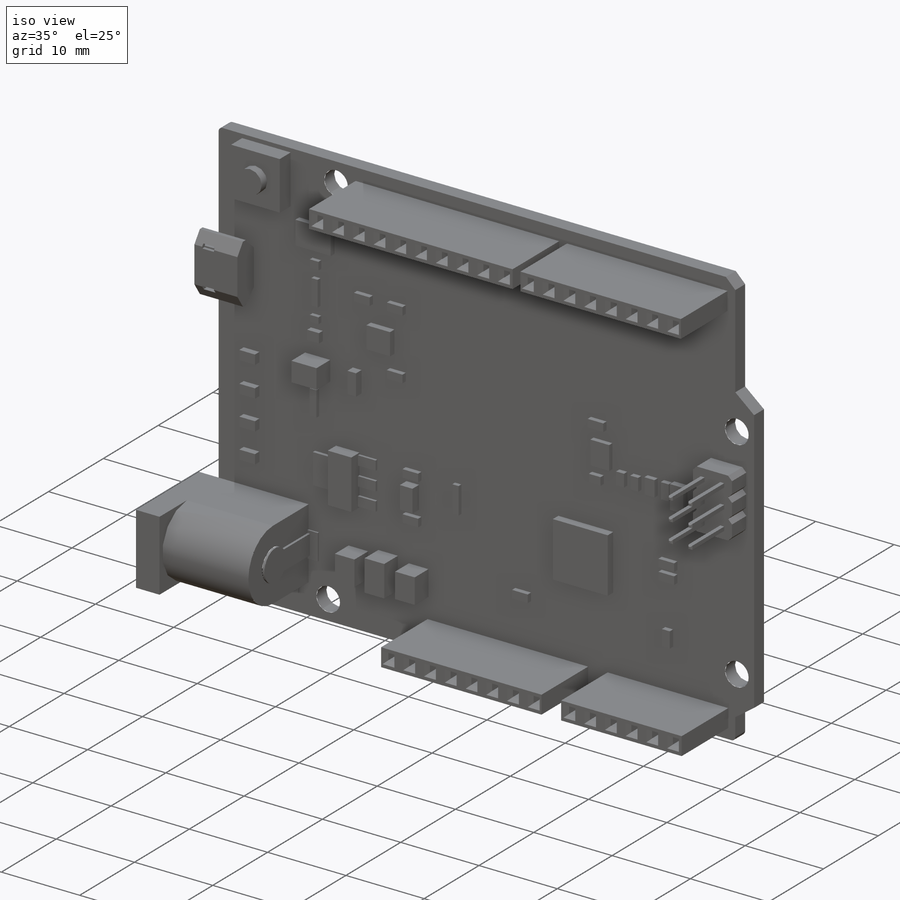
[diagram: iso view]
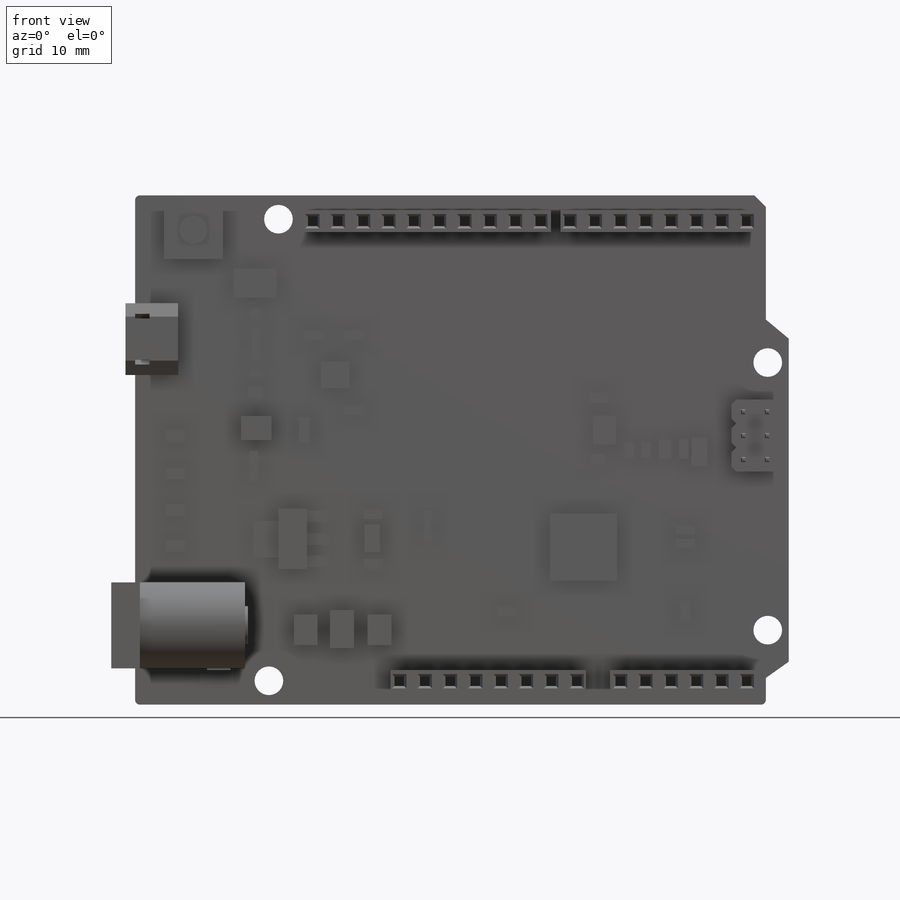
[diagram: front view]
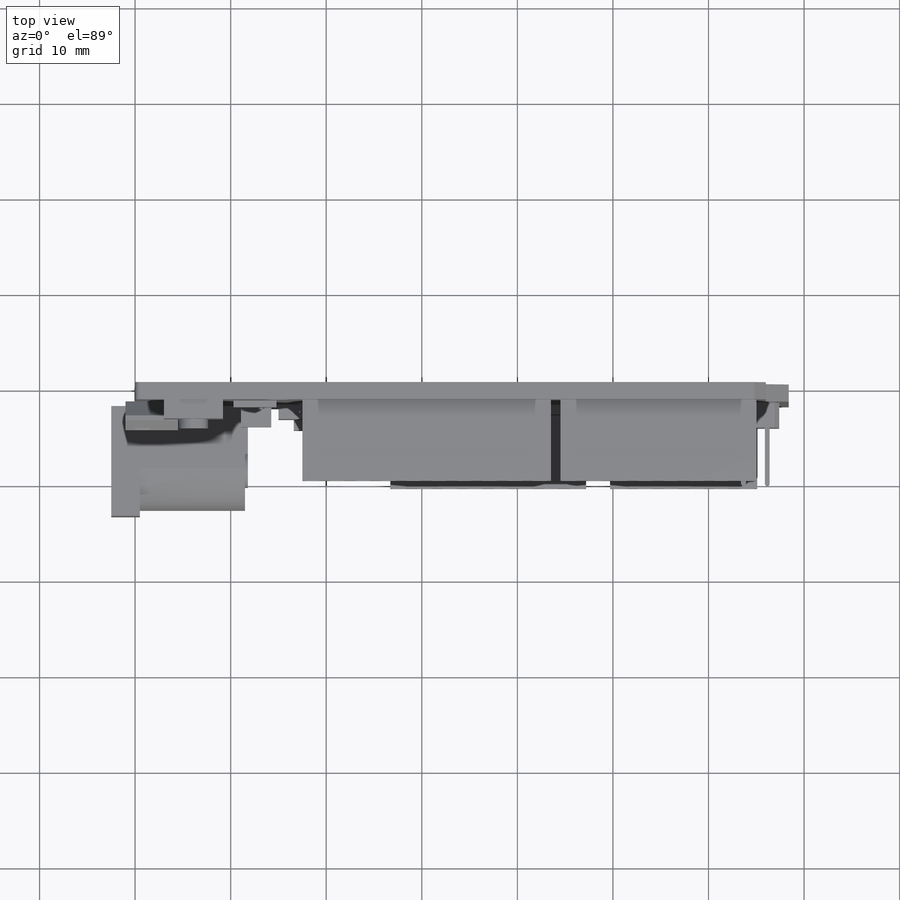
[diagram: top view]
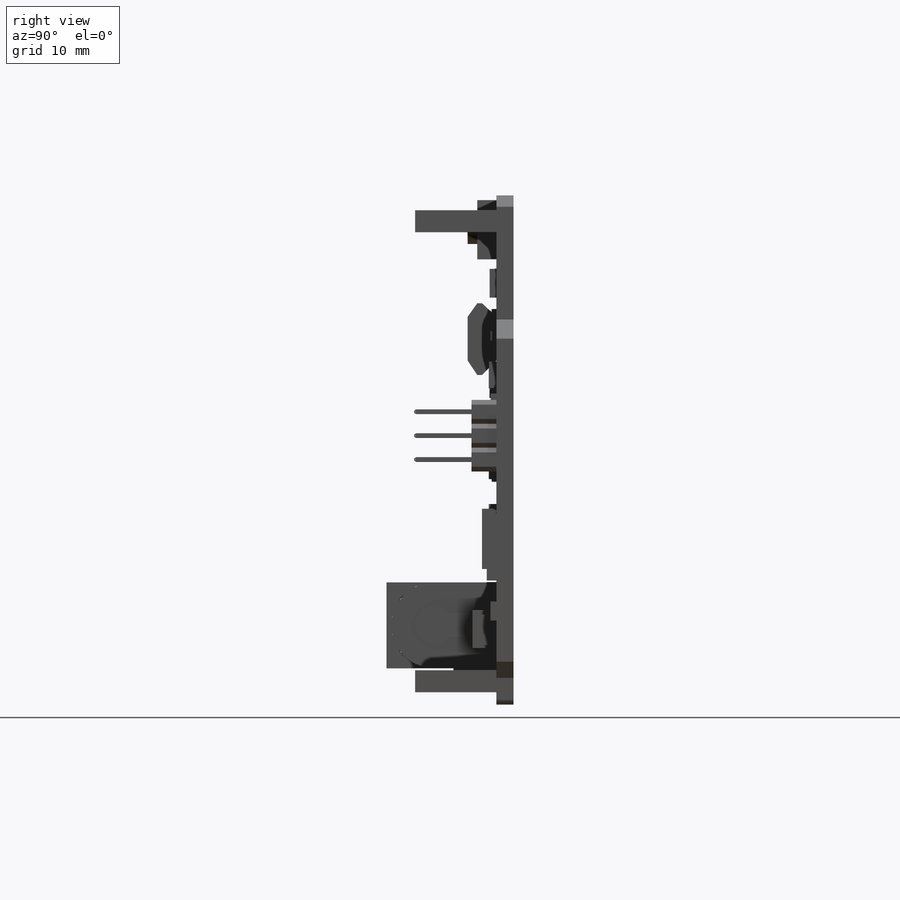
[diagram: right view]
SOLIDWORKS PART (.sldprt)
format: sldprt  version: not decoded by parser v0  size: 2,333,184 bytes
history: native  units: mm
features: sketch x47, extrude x34, cut_extrude x10, pattern_linear x5, chamfer x2, material x1, hole x1, fillet x1 (+12 scaffold rows collapsed)
feature tree (113):
  scaffold x12  (default folders/planes/origin — collapsed)
  material  "Material <not specified>"
  sketch  "Sketch1"  dims[c1.D5=0.5mm c1.D1=68.4mm c1.D2=53.3mm c1.D3=66.0mm c2.D1=68.4mm c2.D4=66.0mm c2.D5=13.0mm c2.D6=15.0mm c2.D7=48.8mm c2.D8=50.5mm c2.D9=~1.968064mm c3.D9=45.0deg c3.D10=1.2mm]
  extrude  "Boss-Extrude1"  Depth=1.8mm
  sketch  "Sketch2"  dims[D1=15.0mm D2=2.5mm D3=2.2mm D4=2.2mm D5=2.5mm D6=14.0mm D7=17.5mm D8=45.5mm]
  hole  "Ø3.0 (3) Diameter Hole2"  Diameter=3mm Depth=1.8mm
  sketch  "Sketch6"
  sketch  "Sketch7"  dims[hole-wizard template sketch: 60 standard entries collapsed; hole parameters kept: c18.Thru Hole Depth=1.8mm]
  sketch  "Sketch8"  dims[D1=2.3mm D2=2.3mm D3=2.3mm D4=2.3mm D5=15.4mm D6=1.3mm D7=1.3mm D8=20.5mm D9=2.5mm D10=3.3mm D11=1.0mm D12=1.0mm D13=20.5mm D14=26.0mm]
  extrude  "Boss-Extrude2"  Depth=8.5mm
  sketch  "Sketch10"  dims[D1=1.5mm D2=1.5mm D3=0.2mm D4=0.4mm D5=1.5mm]
  cut_extrude  "Cut-Extrude1"  Depth=8.5mm
  sketch  "Sketch11"  dims[D1=1.0mm D2=1.0mm]
  cut_extrude  "Cut-Extrude2"  Depth=8.5mm
  pattern_linear  "LPattern1"  Count1=8 Count2=1 Spacing1=2.65mm Spacing2=10mm
  sketch  "Sketch12"  dims[D1=1.5mm D2=1.5mm D3=0.4mm D4=0.3mm]
  cut_extrude  "Cut-Extrude3"  Depth=8.5mm
  sketch  "Sketch14"  dims[D1=1.0mm D2=1.0mm D3=0.25mm D4=0.25mm]
  cut_extrude  "Cut-Extrude4"  Depth=8.5mm
  pattern_linear  "LPattern2"  Count1=6 Count2=1 Spacing1=2.65mm Spacing2=10mm
  sketch  "Sketch15"  dims[D1=0.3mm D2=1.5mm D3=0.4mm D4=1.5mm]
  cut_extrude  "Cut-Extrude5"  Depth=8.5mm
  sketch  "Sketch16"  dims[D1=1.0mm]
  cut_extrude  "Cut-Extrude6"  Depth=8.5mm
  pattern_linear  "LPattern3"  Count1=10 Count2=1 Spacing1=2.65mm Spacing2=10mm
  sketch  "Sketch17"  dims[D1=0.4mm D2=1.5mm D3=1.5mm D4=0.2mm]
  cut_extrude  "Cut-Extrude7"  Depth=8.5mm
  sketch  "Sketch18"  dims[D1=1.0mm]
  cut_extrude  "Cut-Extrude8"  Depth=8.5mm
  pattern_linear  "LPattern4"  Count1=8 Count2=1 Spacing1=2.65mm Spacing2=10mm
  sketch  "Sketch19"  dims[c1.D1=5.0mm c1.D2=7.5mm c1.D3=2.5mm c1.D4=2.5mm c1.D5=~0.439722mm c2.D5=45.0deg c2.D6=5.0mm c3.D6=45.0deg c3.D7=0.5mm c3.D3=5.0mm c3.D4=1.0mm c3.D5=21.4mm c4.D6=2.5mm c4.D7=5.0mm c4.D8=0.5mm c5.D8=90.0deg c5.D9=1.5mm c6.D9=135.0deg c6.D10=1.5mm c7.D10=135.0deg c7.D11=0.5mm c8.D11=90.0deg c8.D12=0.5mm c9.D12=90.0deg c9.D13=0.5mm c10.D13=90.0deg c10.D14=2.0mm c11.D14=135.0deg c11.D15=1.5mm c12.D15=135.0deg c12.D16=0.5mm c12.D17=0.5mm c12.D18=0.5mm c12.D19=0.5mm]
  extrude  "Boss-Extrude3"  Depth=2.6mm
  chamfer  "Chamfer1"  Distance=0.5mm Angle=45deg
  sketch  "Sketch20"  dims[D1=0.5mm D2=0.5mm D3=0.5mm D4=0.5mm D5=2.0mm D6=1.0mm D7=1.0mm D8=1.0mm D9=1.0mm D10=1.0mm]
  extrude  "Boss-Extrude4"  Depth=6mm
  chamfer  "Chamfer2"  Distance=0.2mm Angle=30deg
  pattern_linear  "LPattern6"  Count1=3 Count2=1 Spacing1=2.5mm Spacing2=10mm
  sketch  "Sketch21"  dims[D1=7.0mm D2=7.0mm D3=18.0mm D4=20.0mm]
  extrude  "Boss-Extrude5"  Depth=1mm
  sketch  "Sketch22"  dims[D1=3.0mm D2=1.7mm D3=2.5mm D4=21.5mm]
  extrude  "Boss-Extrude6"  Depth=0.8mm
  sketch  "Sketch23"  dims[c1.D1=0.3mm c1.D2=1.0mm c1.D3=1.3mm c1.D4=1.0mm c1.D5=1.0mm c1.D6=0.2mm c1.D7=0.0mm c1.D8=~0.029701mm c1.D9=1.0mm c2.D4=1.0mm c2.D7=0.8mm c2.D8=0.8mm c2.D9=0.8mm c2.D10=0.3mm c2.D11=1.6mm c2.D12=1.6mm c2.D13=0.3mm c2.D14=2.0mm c2.D15=2.0mm c2.D16=2.4mm c2.D17=0.9mm c2.D18=3.0mm c2.D19=0.2mm c2.D20=1.0mm c2.D21=1.5mm c2.D22=2.0mm c2.D23=1.0mm c2.D24=2.0mm c2.D25=1.3mm c2.D26=1.0mm]
  extrude  "Boss-Extrude7"  Depth=0.6mm
  sketch  "Sketch24"  dims[D1=1.0mm D2=1.0mm D3=2.0mm D4=2.0mm D5=1.0mm D6=2.0mm D7=1.0mm D8=1.0mm D9=2.0mm D10=2.0mm D11=2.0mm D12=1.0mm D13=2.0mm D14=1.0mm D15=5.2mm D16=5.5mm D17=0.5mm D18=6.2mm D19=3.5mm D20=5.6mm D21=10.6mm D22=4.2mm D23=17.5mm D24=19.5mm D25=9.9mm D26=2.0mm D27=2.0mm D28=2.2mm D29=19.5mm D30=6.8mm D31=6.8mm D32=1.0mm D33=1.0mm D34=17.5mm]
  extrude  "Boss-Extrude8"  Depth=0.6mm
  sketch  "Sketch25"  dims[D1=2.2mm D2=2.8mm D3=3.0mm D4=1.45mm]
  extrude  "Boss-Extrude9"  Depth=0.8mm
  sketch  "Sketch26"  dims[D1=1.6mm D2=~2.864552mm D3=0.75mm D4=17.8mm]
  extrude  "Boss-Extrude10"  Depth=1.2mm
  sketch  "Sketch27"  dims[D1=2.5mm D2=2.5mm D3=2.0mm D4=2.0mm D5=16.6mm D6=5.2mm D7=3.2mm D8=2.3mm D9=2.5mm D10=4.0mm D11=1.4mm]
  extrude  "Boss-Extrude11"  Depth=2.5mm
  sketch  "Sketch28"  dims[D1=0.6mm D2=0.6mm D3=0.6mm D4=0.6mm D5=0.6mm D6=0.6mm]
  extrude  "Boss-Extrude12"  Depth=2.5mm
  sketch  "Sketch30"  dims[D1=14.0mm D2=9.0mm D3=3.8mm D4=2.5mm]
  extrude  "Boss-Extrude13"  Depth=6.5mm
  sketch  "Sketch31"  dims[D1=9.0mm]
  extrude  "Boss-Extrude14"  Depth=14mm
  sketch  "Sketch32"  dims[D1=5.0mm]
  extrude  "Boss-Extrude15"  Depth=3mm
  sketch  "Sketch33"  dims[D1=4.5mm D2=5.0mm]
  cut_extrude  "Cut-Extrude9"  Depth=10mm
  sketch  "Sketch34"  dims[D1=2.5mm]
  extrude  "Boss-Extrude16"  Depth=9mm
  fillet  "Fillet1"  Radius=1.25mm
  sketch  "Sketch35"  dims[D1=2.5mm D2=4.5mm D3=1.5mm]
  extrude  "Boss-Extrude17"  Depth=0.2mm
  sketch  "Sketch36"  dims[D2=4.0mm D1=2.5mm D3=3.25mm D4=3.25mm]
  extrude  "Boss-Extrude18"  Depth=0.3mm
  sketch  "Sketch37"  dims[c1.D1=~4.175611mm c1.D2=~2.193109mm c1.D3=~0.573537mm c2.D3=~127.830776deg c2.D4=~1.099228mm c3.D4=135.0deg c3.D5=~0.573537mm c4.D5=~127.375807deg c4.D6=~1.099228mm c5.D6=135.0deg c5.D7=~2.193109mm c6.D7=~142.624193deg c6.D8=~1.099228mm c7.D8=135.0deg c7.D9=40.0mm c8.D9=45.0deg c8.D10=3.0mm c8.D11=1.2mm c8.D12=~0.782501mm c8.D3=~0.782501mm c8.D1=3.0mm c8.D2=1.5mm c9.D3=0.5mm c9.D4=7.5mm c9.D5=1.4mm c9.D7=11.3mm c9.D6=0.4mm]
  extrude  "Boss-Extrude19"  Depth=4.5mm
  sketch  "Sketch38"
  extrude  "Boss-Extrude20"  Depth=1mm
  sketch  "Sketch39"  dims[D1=0.5mm D2=0.5mm D3=4.0mm D4=0.175mm D5=~0.175704mm D6=4.0mm]
  extrude  "Boss-Extrude21"  Depth=4mm
  sketch  "Sketch41"  dims[D1=1.1mm D2=0.5mm D3=0.5mm D4=1.1mm D5=1.5mm D6=1.5mm D7=1.0mm D8=1.0mm]
  cut_extrude  "Cut-Extrude10"  Depth=1mm
  sketch  "Sketch43"  dims[D1=6.2mm D2=6.2mm D3=0.5mm D4=3.0mm]
  extrude  "Boss-Extrude22"  Depth=2mm
  sketch  "Sketch44"  dims[D3=3.0mm D1=3.1mm D2=3.1mm]
  extrude  "Boss-Extrude23"  Depth=1mm
  sketch  "Sketch45"  dims[D1=4.5mm D2=3.0mm D3=1.1mm D4=1.0mm]
  extrude  "Boss-Extrude24"  Depth=0.7mm
  sketch  "Sketch46"  dims[D1=1.0mm D2=1.1mm D3=1.2mm D4=0.8mm D5=3.2mm D6=1.8mm D7=1.7mm D8=1.1mm D9=0.8mm D10=1.1mm D11=0.0mm]
  extrude  "Boss-Extrude25"  Depth=0.5mm
  sketch  "Sketch47"  dims[D1=1.5mm D2=1.2mm D3=0.9mm D4=1.5mm]
  extrude  "Boss-Extrude26"  Depth=0.7mm
  sketch  "Sketch48"  dims[D1=3.2mm D2=2.5mm D3=5.2mm D4=1.9mm]
  extrude  "Boss-Extrude27"  Depth=2.5mm
  sketch  "Sketch49"  dims[D1=3.0mm D2=6.3mm D3=15.0mm D4=4.8mm]
  extrude  "Boss-Extrude28"  Depth=1.5mm
  sketch  "Sketch50"  dims[D1=1.1mm D2=2.7mm D3=2.9mm D4=3.0mm]
  extrude  "Boss-Extrude29"  Depth=1mm
  sketch  "Sketch51"  dims[D1=0.8mm D2=3.4mm D3=4.3mm D4=7.5mm]
  extrude  "Boss-Extrude30"  Depth=0.5mm
  sketch  "Sketch52"  dims[D1=2.0mm D2=2.0mm D3=2.0mm D4=2.0mm D5=1.2mm D6=1.2mm D7=1.2mm D8=1.2mm D9=3.2mm D10=3.2mm D11=3.2mm D12=3.2mm D13=3.2mm D14=2.6mm D15=2.6mm D16=2.7mm]
  extrude  "Boss-Extrude31"  Depth=0.8mm
  sketch  "Sketch53"  dims[D1=1.5mm D2=3.5mm D3=1.2mm D4=1.0mm D5=3.3mm D6=2.8mm]
  extrude  "Boss-Extrude32"  Depth=0.2mm
  sketch  "Sketch54"  dims[D1=1.2mm D2=1.2mm D3=1.2mm]
  extrude  "Boss-Extrude33"  Depth=0.3mm
  sketch  "Sketch55"
  extrude  "Boss-Extrude34"  Depth=0.4mm
decode coverage: 97 of 100 modeling features carry decoded parameters
note: ~ marks probable driven/reference dimensions
note: suppression state not decoded; provenance and decode notes live in map.json
